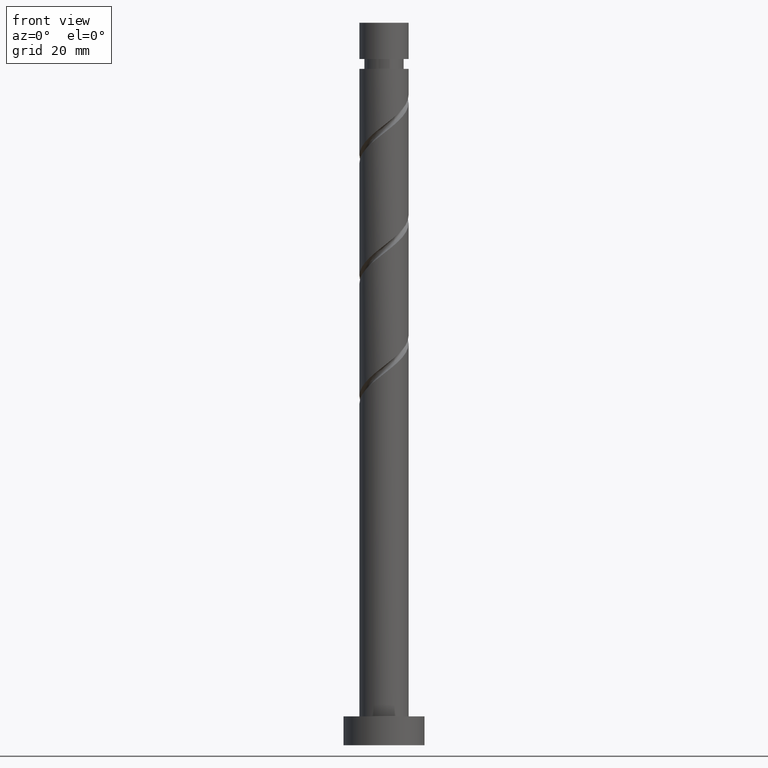
[diagram: clean part render]
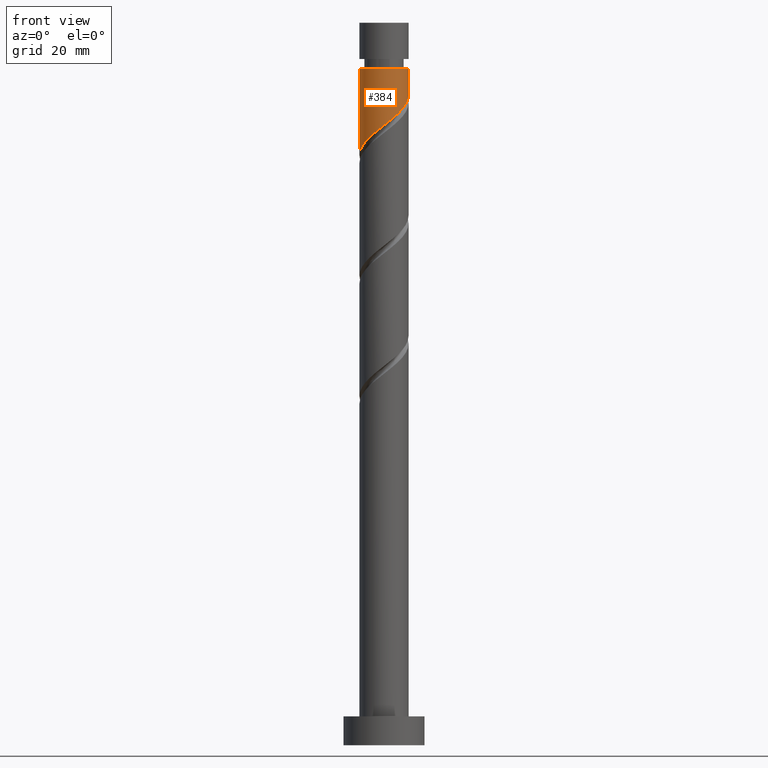
[diagram: same view with one face highlighted and labeled with its STEP entity id]
A machine part, front view. The second image highlights one B-rep face of the part: STEP entity #384.
In plain terms, the highlighted cylindrical surface (edge-blend (fillet) strip) has radius 4.25 mm, axis along (-0, -0, -1).
Its self-contained STEP definition (entity closure, byte-faithful):
#16 = VERTEX_POINT ( 'NONE', #652 ) ;
#28 = CARTESIAN_POINT ( 'NONE',  ( 2.376328278665554183, -3.587293286143810711, 109.2180692903374251 ) ) ;
#50 = CARTESIAN_POINT ( 'NONE',  ( 3.699802567202122194, -2.091401674409913980, 110.7805692903373966 ) ) ;
#60 = CIRCLE ( 'NONE', #1218, 4.249999999999998224 ) ;
#150 = EDGE_CURVE ( 'NONE', #1165, #944, #1209, .T. ) ;
#151 = CARTESIAN_POINT ( 'NONE',  ( -1.505410515492322743, -4.031048050897332757, 106.0930692903374393 ) ) ;
#342 = CARTESIAN_POINT ( 'NONE',  ( 4.250000000000000000, 6.596965224610570787E-16, 112.4870383984743683 ) ) ;
#343 = CARTESIAN_POINT ( 'NONE',  ( -4.250000000000000000, 0.000000000000000000, 125.0000000000000000 ) ) ;
#347 = DIRECTION ( 'NONE',  ( -1.000000000000000000, 0.000000000000000000, 0.000000000000000000 ) ) ;
#384 = ADVANCED_FACE ( 'NONE', ( #449 ), #1183, .T. ) ;
#388 = CARTESIAN_POINT ( 'NONE',  ( -4.222498213536506562, -0.4827098887333983179, 102.4472359570040538 ) ) ;
#429 = DIRECTION ( 'NONE',  ( -0.000000000000000000, -0.000000000000000000, -1.000000000000000000 ) ) ;
#432 = VECTOR ( 'NONE', #429, 1000.000000000000000 ) ;
#449 = FACE_OUTER_BOUND ( 'NONE', #890, .T. ) ;
#468 = DIRECTION ( 'NONE',  ( -0.000000000000000000, -0.000000000000000000, -1.000000000000000000 ) ) ;
#486 = AXIS2_PLACEMENT_3D ( 'NONE', #776, #1557, #1429 ) ;
#514 = EDGE_CURVE ( 'NONE', #16, #944, #961, .T. ) ;
#524 = CARTESIAN_POINT ( 'NONE',  ( -3.587293286143809823, -2.376328278665554627, 104.0097359570040823 ) ) ;
#542 = CARTESIAN_POINT ( 'NONE',  ( -0.1860681275889359276, -4.298951949102664649, 107.1347359570040823 ) ) ;
#572 = CARTESIAN_POINT ( 'NONE',  ( 4.250000000000000000, 5.204748896376250699E-16, 125.0000000000000000 ) ) ;
#579 = ORIENTED_EDGE ( 'NONE', *, *, #1463, .F. ) ;
#588 = CARTESIAN_POINT ( 'NONE',  ( -4.250000000000000000, -1.289406839355702548E-15, 102.0703717318076968 ) ) ;
#606 = ORIENTED_EDGE ( 'NONE', *, *, #1175, .T. ) ;
#620 = CARTESIAN_POINT ( 'NONE',  ( 1.151487905055731842, -4.146044477970347586, 108.1764026236707537 ) ) ;
#630 = CARTESIAN_POINT ( 'NONE',  ( 4.164999999999999147, -0.8457393215406295850, 111.8222359570040965 ) ) ;
#652 = CARTESIAN_POINT ( 'NONE',  ( -4.249999999999998224, 0.000000000000000000, 117.0305692903374251 ) ) ;
#659 = CARTESIAN_POINT ( 'NONE',  ( 3.368557083506908967, -2.677392833327504551, 110.2597359570040823 ) ) ;
#677 = LINE ( 'NONE', #572, #432 ) ;
#769 = CARTESIAN_POINT ( 'NONE',  ( 4.250000000000000000, 6.596965224610570787E-16, 112.4870383984743683 ) ) ;
#776 = CARTESIAN_POINT ( 'NONE',  ( 0.000000000000000000, 0.000000000000000000, 125.0000000000000000 ) ) ;
#853 = CARTESIAN_POINT ( 'NONE',  ( 2.872442681086231797, -3.132343059735657409, 109.7389026236707252 ) ) ;
#877 = CARTESIAN_POINT ( 'NONE',  ( -3.132343059735657409, -2.872442681086231797, 104.5305692903374251 ) ) ;
#890 = EDGE_LOOP ( 'NONE', ( #579, #606, #950, #1536 ) ) ;
#903 = CARTESIAN_POINT ( 'NONE',  ( 4.249999999999998224, 5.204748896376249713E-16, 117.0305692903374251 ) ) ;
#944 = VERTEX_POINT ( 'NONE', #588 ) ;
#950 = ORIENTED_EDGE ( 'NONE', *, *, #514, .T. ) ;
#961 = LINE ( 'NONE', #343, #1274 ) ;
#979 = CARTESIAN_POINT ( 'NONE',  ( 1.763908091860643124, -3.866668882057078704, 108.6972359570040823 ) ) ;
#1007 = CARTESIAN_POINT ( 'NONE',  ( -2.091401674409913980, -3.699802567202122194, 105.5722359570040823 ) ) ;
#1097 = CARTESIAN_POINT ( 'NONE',  ( -4.250000000000000000, -1.289406839355702548E-15, 102.0703717318076968 ) ) ;
#1107 = CARTESIAN_POINT ( 'NONE',  ( 4.031048050897332757, -1.505410515492323187, 111.3014026236707821 ) ) ;
#1128 = CARTESIAN_POINT ( 'NONE',  ( 0.4827098887333978738, -4.222498213536506562, 107.6555692903374108 ) ) ;
#1165 = VERTEX_POINT ( 'NONE', #342 ) ;
#1175 = EDGE_CURVE ( 'NONE', #1295, #16, #60, .T. ) ;
#1183 = CYLINDRICAL_SURFACE ( 'NONE', #486, 4.250000000000000000 ) ;
#1209 =( BOUNDED_CURVE ( )  B_SPLINE_CURVE ( 2, ( #769, #1378, #630, #1107, #50, #659, #853, #28, #979, #620, #1128, #542, #1237, #151, #1007, #1465, #877, #524, #1249, #1363, #388, #1347, #1097 ),
 .UNSPECIFIED., .F., .T. ) 
 B_SPLINE_CURVE_WITH_KNOTS ( ( 3, 2, 2, 2, 2, 2, 2, 2, 2, 2, 2, 3 ),
 ( 0.3045322023138550827, 0.3125000000000000000, 0.3250000000000000111, 0.3375000000000000222, 0.3499999999999999778, 0.3624999999999999889, 0.3750000000000000000, 0.3875000000000000111, 0.4000000000000000222, 0.4124999999999999778, 0.4249999999999999889, 0.4295322023138550271 ),
 .UNSPECIFIED. ) 
 CURVE ( )  GEOMETRIC_REPRESENTATION_ITEM ( )  RATIONAL_B_SPLINE_CURVE ( ( 0.9039174447099329601, 0.9019565955404620361, 0.9090909090909105039, 0.8978984914501265679, 0.9090909090909105039, 0.8978984914501265679, 0.9090909090909105039, 0.8978984914501265679, 0.9090909090909105039, 0.8978984914501265679, 0.9090909090909105039, 0.8978984914501265679, 0.9090909090909105039, 0.8978984914501265679, 0.9090909090909105039, 0.8978984914501265679, 0.9090909090909105039, 0.8978984914501265679, 0.9090909090909105039, 0.8978984914501265679, 0.9090909090909105039, 0.9050328050005750358, 0.9039174447099329601 ) ) 
 REPRESENTATION_ITEM ( '' )  );
#1218 = AXIS2_PLACEMENT_3D ( 'NONE', #1458, #1449, #347 ) ;
#1237 = CARTESIAN_POINT ( 'NONE',  ( -0.8457393215406293629, -4.164999999999999147, 106.6139026236707394 ) ) ;
#1249 = CARTESIAN_POINT ( 'NONE',  ( -3.866668882057078704, -1.763908091860643124, 103.4889026236707679 ) ) ;
#1274 = VECTOR ( 'NONE', #468, 1000.000000000000000 ) ;
#1295 = VERTEX_POINT ( 'NONE', #903 ) ;
#1347 = CARTESIAN_POINT ( 'NONE',  ( -4.249999999999999112, -0.2421383841473452037, 102.2598828210149549 ) ) ;
#1363 = CARTESIAN_POINT ( 'NONE',  ( -4.146044477970347586, -1.151487905055732286, 102.9680692903374108 ) ) ;
#1378 = CARTESIAN_POINT ( 'NONE',  ( 4.250000000000000888, -0.4271410714851631707, 112.1527338230665265 ) ) ;
#1429 = DIRECTION ( 'NONE',  ( -1.000000000000000000, 0.000000000000000000, 0.000000000000000000 ) ) ;
#1449 = DIRECTION ( 'NONE',  ( -0.000000000000000000, -0.000000000000000000, -1.000000000000000000 ) ) ;
#1458 = CARTESIAN_POINT ( 'NONE',  ( 0.000000000000000000, 0.000000000000000000, 117.0305692903374251 ) ) ;
#1463 = EDGE_CURVE ( 'NONE', #1295, #1165, #677, .T. ) ;
#1465 = CARTESIAN_POINT ( 'NONE',  ( -2.677392833327503663, -3.368557083506908967, 105.0514026236707537 ) ) ;
#1536 = ORIENTED_EDGE ( 'NONE', *, *, #150, .F. ) ;
#1557 = DIRECTION ( 'NONE',  ( -0.000000000000000000, -0.000000000000000000, -1.000000000000000000 ) ) ;